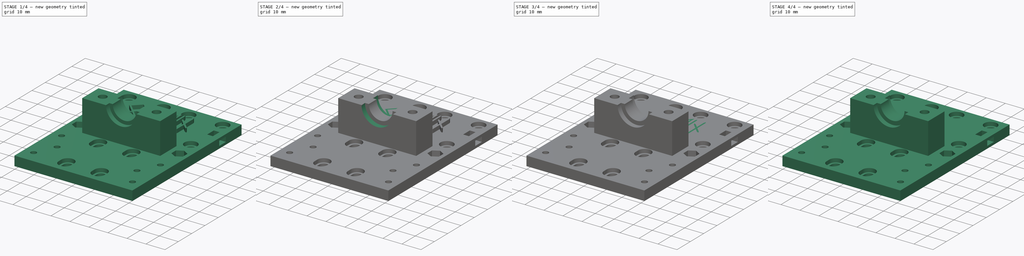
[diagram: build sequence overview — one tinted view per stage of 4, left to right]
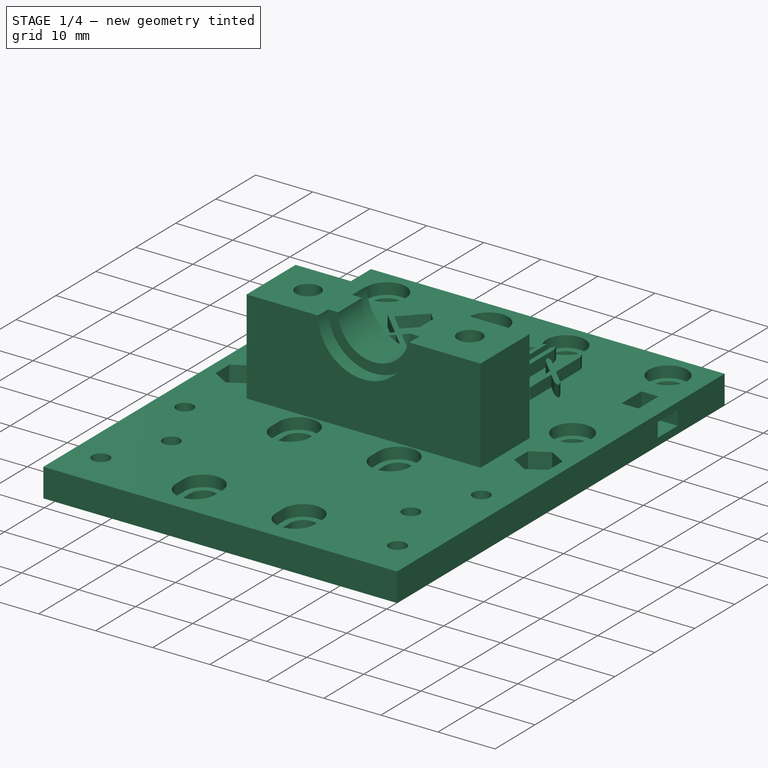
[diagram: stage 1 of 4 — iso view after this stage's code; geometry added in this stage tinted green]
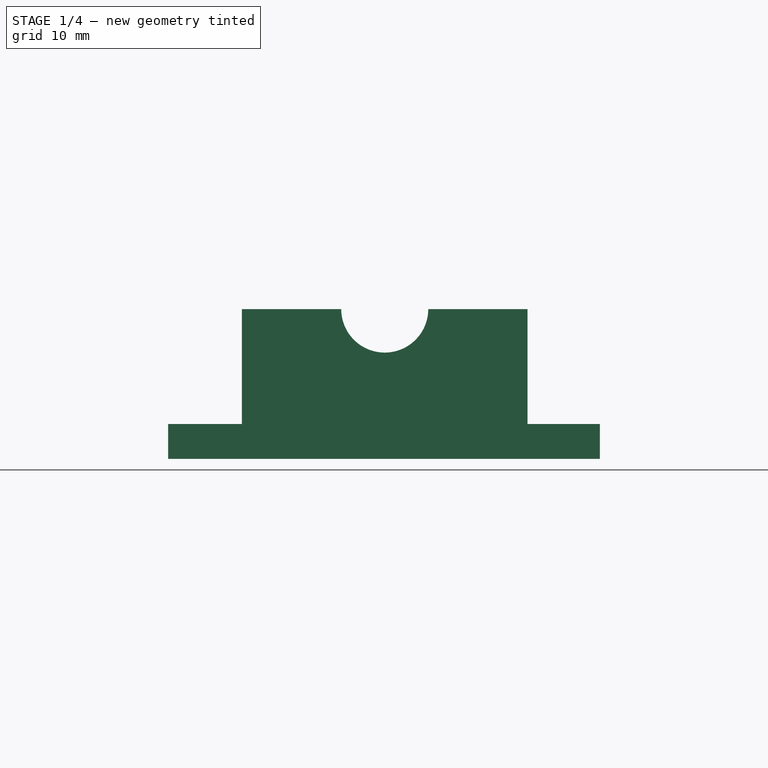
[diagram: stage 1 of 4 — front view after this stage's code; geometry added in this stage tinted green]
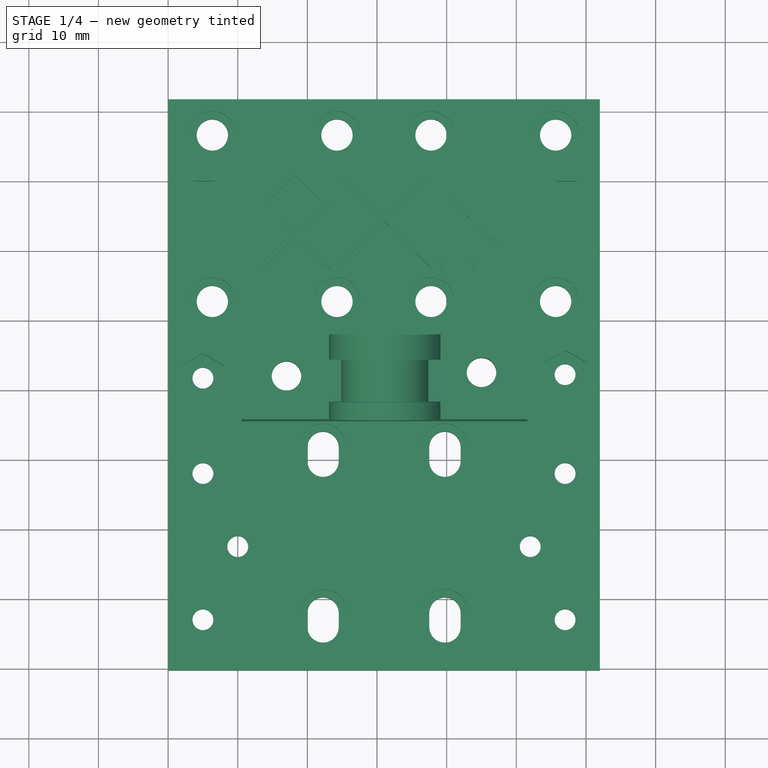
[diagram: stage 1 of 4 — top view after this stage's code; geometry added in this stage tinted green]
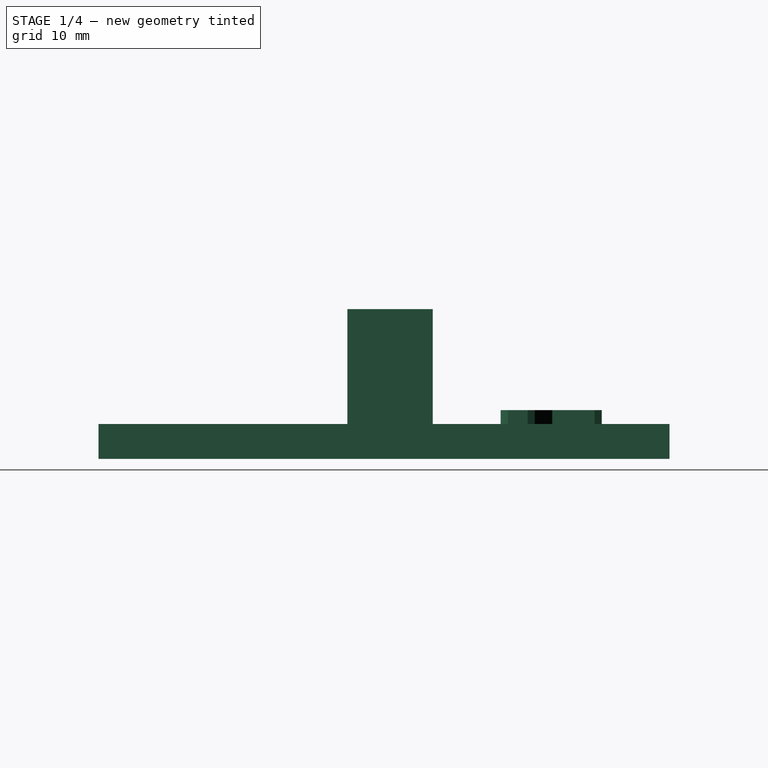
[diagram: stage 1 of 4 — right view after this stage's code; geometry added in this stage tinted green]
FCSTD DOCUMENT  (FreeCAD 0.18R16131 (Git))
Label: BasePlate
License: All rights reserved
LicenseURL: http://en.wikipedia.org/wiki/All_rights_reserved
objects: PartDesign::Pocket×7, App::MeasureDistance×4, Part::Feature×3, Sketcher::SketchObject×3, Part::FeaturePython×2, PartDesign::FeatureBase×1, PartDesign::Body×1
note: 24 computed .brp shape members not serialized (recipe doc carries the construction recipe); baked Part::Feature solids carry a one-line shape summary decoded from their .brp

FEATURE [Part::Feature] E3DV6_BasePlate_V4001001001_solid  label="E3DV6_BasePlate_V4003 (Solid)"
  shape: bbox 62 x 82 x 21.5 mm, 1941 faces (baked)
FEATURE [PartDesign::FeatureBase] BaseFeature
  BaseFeature = -> E3DV6_BasePlate_V4001001001_solid
FEATURE [Sketcher::SketchObject] Sketch
  MapMode = 5
  Placement = pos=(0,35.5,0) rot=(1,0,0;1.5708rad)
  Support = -> [BaseFeature]
  sketch-geometry (1):
    g0: Circle CenterX=31.1049 CenterY=21.5114 CenterZ=0 NormalX=0 NormalY=0 NormalZ=1 AngleXU=0 Radius=6.25
  constraints (1):
    c: Radius(g0) = 6.25
FEATURE [PartDesign::Pocket] Pocket  label="SmalHole"
  BaseFeature = -> BaseFeature
  Length = 20
  Length2 = 100
  Profile = -> Sketch
  Type = 0
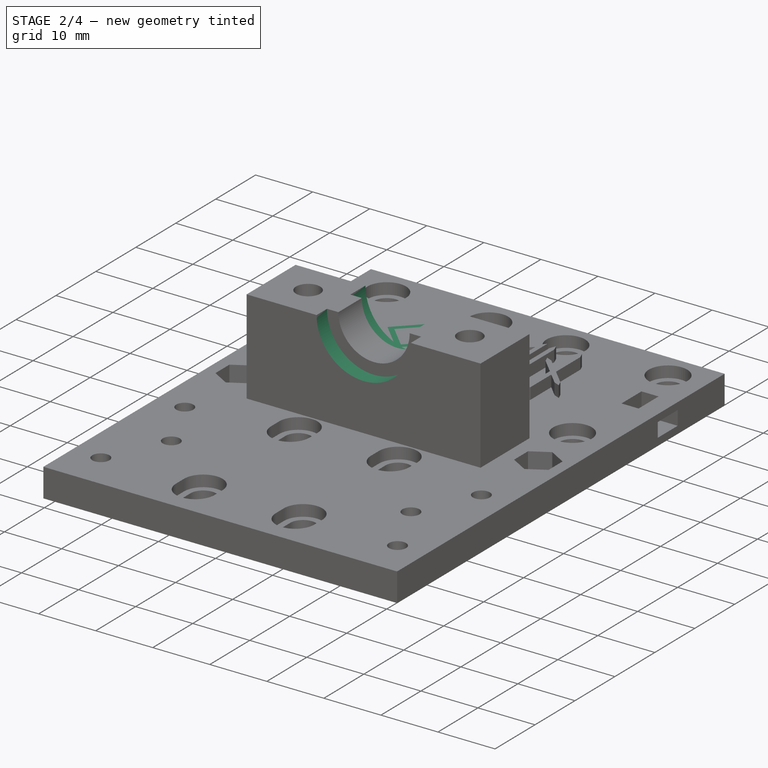
[diagram: stage 2 of 4 — iso view after this stage's code; geometry added in this stage tinted green]
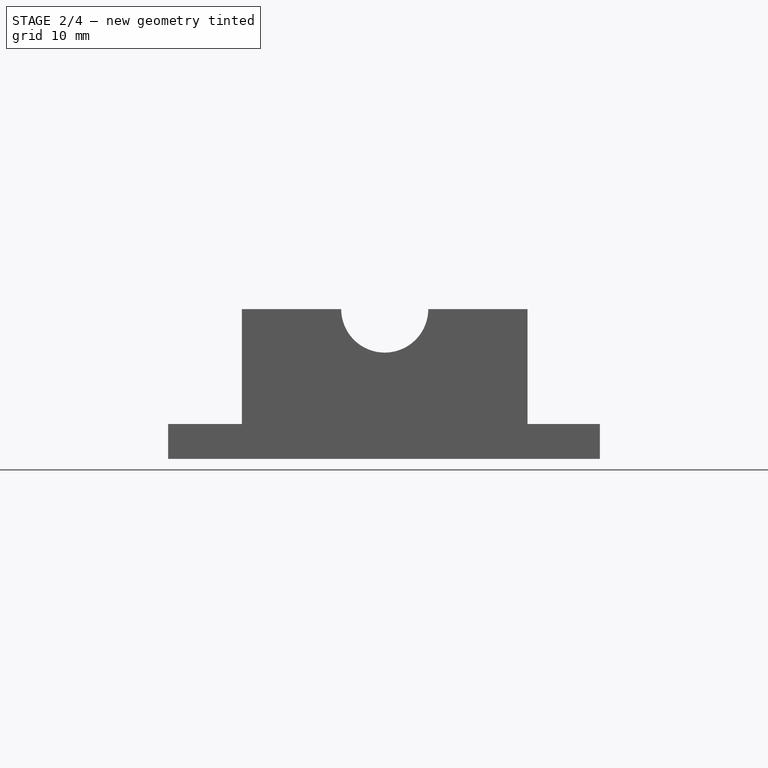
[diagram: stage 2 of 4 — front view after this stage's code; geometry added in this stage tinted green]
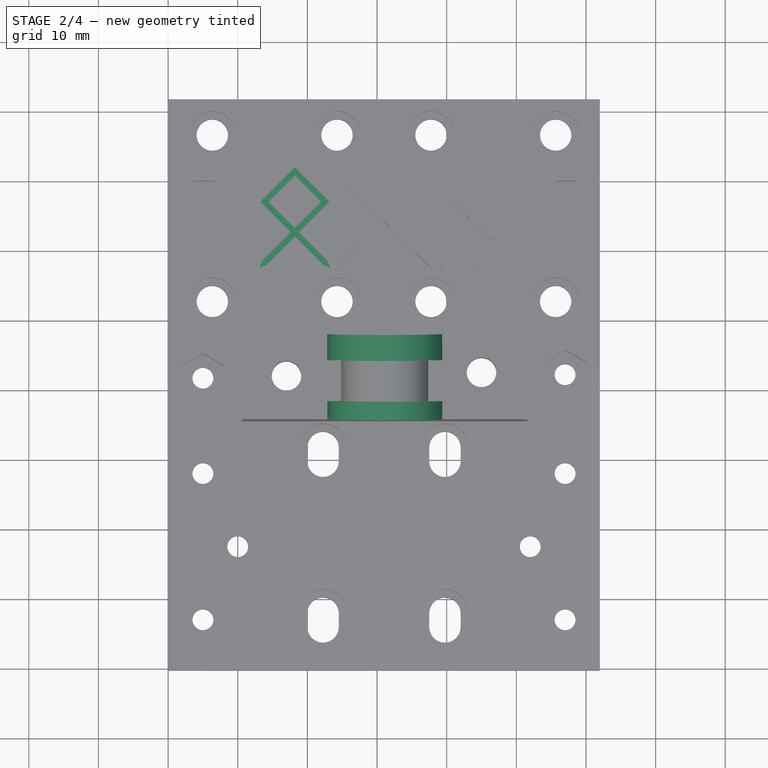
[diagram: stage 2 of 4 — top view after this stage's code; geometry added in this stage tinted green]
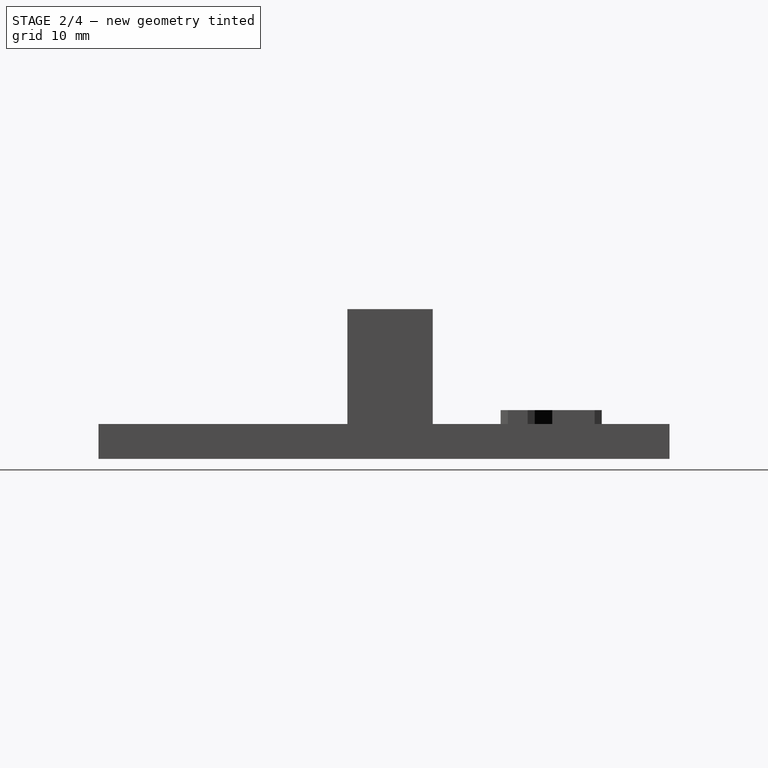
[diagram: stage 2 of 4 — right view after this stage's code; geometry added in this stage tinted green]
FEATURE [Sketcher::SketchObject] Sketch001
  MapMode = 5
  Placement = pos=(0,35.5,0) rot=(1,0,0;1.5708rad)
  Support = -> [Pocket]
  sketch-geometry (1):
    g0: Circle CenterX=31.1153 CenterY=21.4996 CenterZ=0 NormalX=0 NormalY=0 NormalZ=1 AngleXU=0 Radius=8.25
  constraints (1):
    c: Radius(g0) = 8.25
FEATURE [PartDesign::Pocket] Pocket001  label="BigHoleUnder"
  BaseFeature = -> Pocket
  Length = 2.6
  Length2 = 100
  Profile = -> Sketch001
  Type = 0
FEATURE [Sketcher::SketchObject] Sketch002
  MapMode = 5
  Placement = pos=(0,47.75,0) rot=(0,0.707107,0.707107;3.14159rad)
  Support = -> [Pocket001]
  sketch-geometry (1):
    g0: Circle CenterX=-31.094 CenterY=21.4834 CenterZ=0 NormalX=0 NormalY=0 NormalZ=1 AngleXU=0 Radius=8.25
  constraints (1):
    c: Radius(g0) = 8.25
FEATURE [App::MeasureDistance] Distance  label="Distance: 12,25 mm"
  Distance = 12.25
  P1 = (10.6,35.5,21.5)
  P2 = (10.6,47.75,21.5)
FEATURE [App::MeasureDistance] Distance001  label="Distance: 3,72 mm"
  Distance = 3.71535
  P1 = (22.844,43.98,21.5)
  P2 = (22.844,47.6953,21.5)
FEATURE [App::MeasureDistance] Distance002  label="Distance: 2,60 mm"
  Distance = 2.60016
  P1 = (22.8653,35.5,21.5)
  P2 = (22.8947,38.1,21.5)
FEATURE [App::MeasureDistance] Distance003  label="Distance: 5,85 mm"
  Distance = 5.85119
  P1 = (24.8549,38.1,21.5)
  P2 = (24.8549,43.9512,21.5)
FEATURE [PartDesign::Pocket] Pocket002  label="BigHoleTop"
  BaseFeature = -> Pocket001
  Length = 3.77
  Length2 = 100
  Profile = -> Sketch002
  Type = 0
FEATURE [PartDesign::Pocket] Pocket003
  BaseFeature = -> Pocket002
  Length = 2
  Length2 = 100
  Profile = -> Pocket002 [Face1691]
  Type = 0
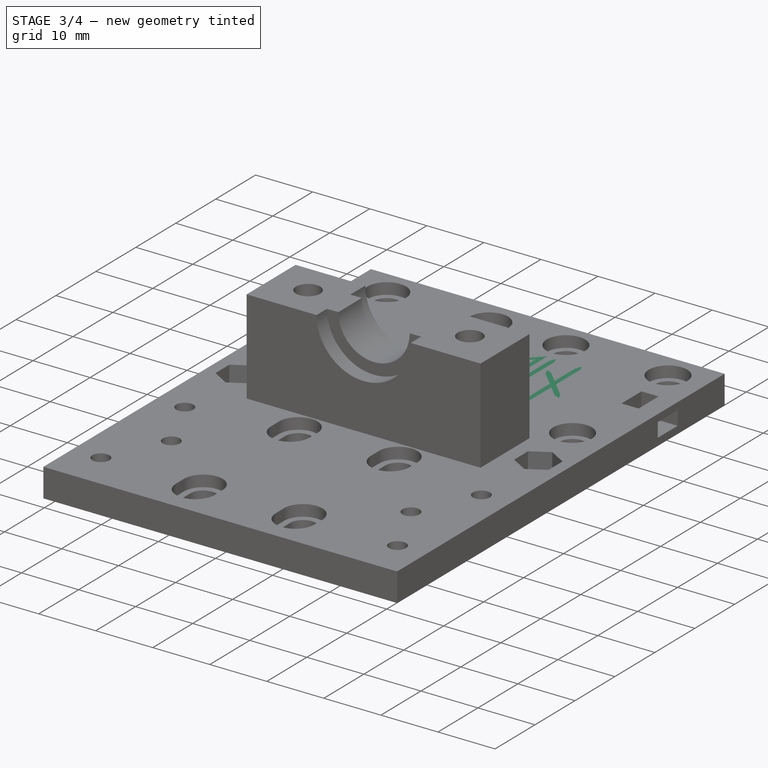
[diagram: stage 3 of 4 — iso view after this stage's code; geometry added in this stage tinted green]
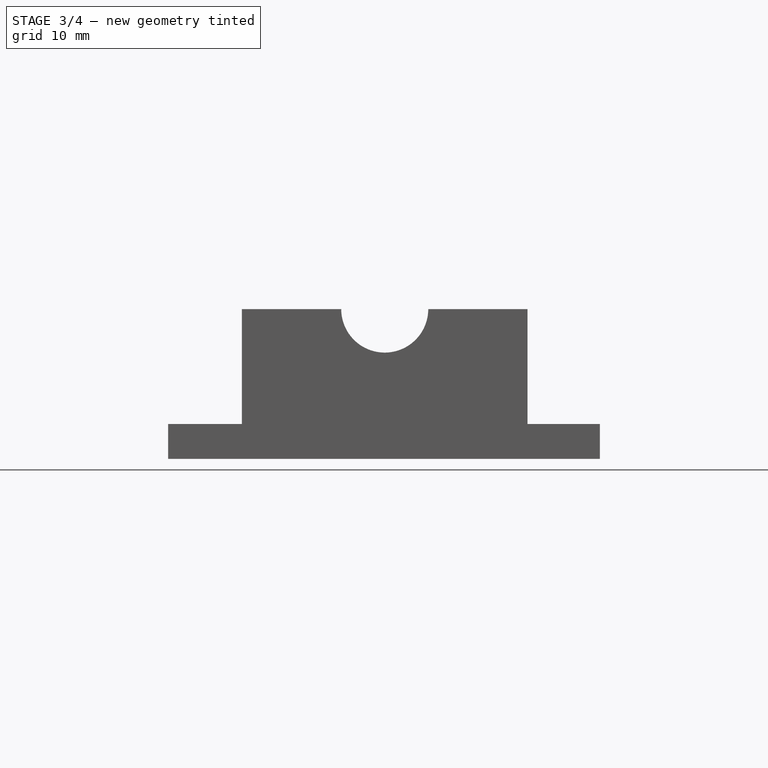
[diagram: stage 3 of 4 — front view after this stage's code; geometry added in this stage tinted green]
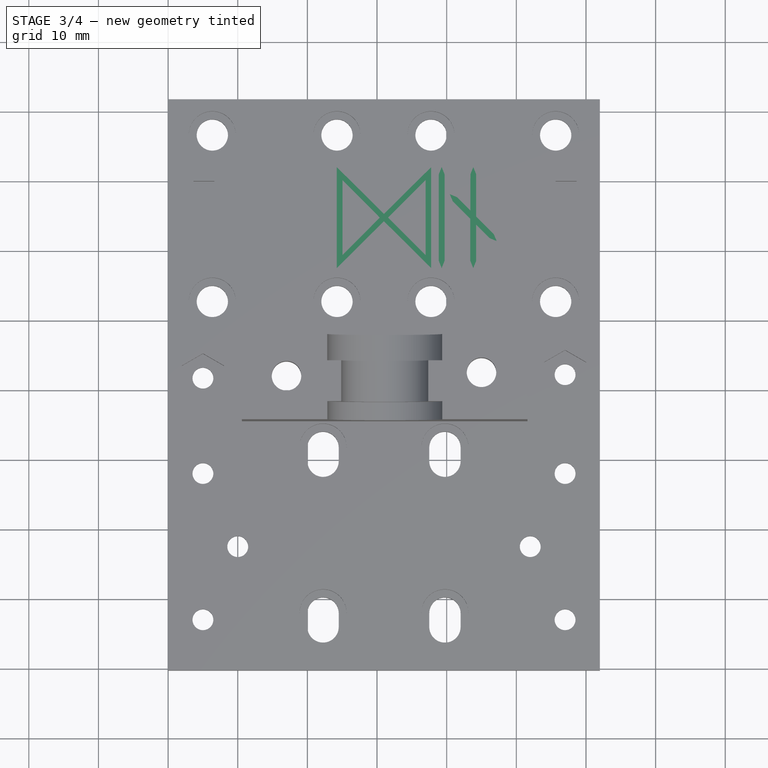
[diagram: stage 3 of 4 — top view after this stage's code; geometry added in this stage tinted green]
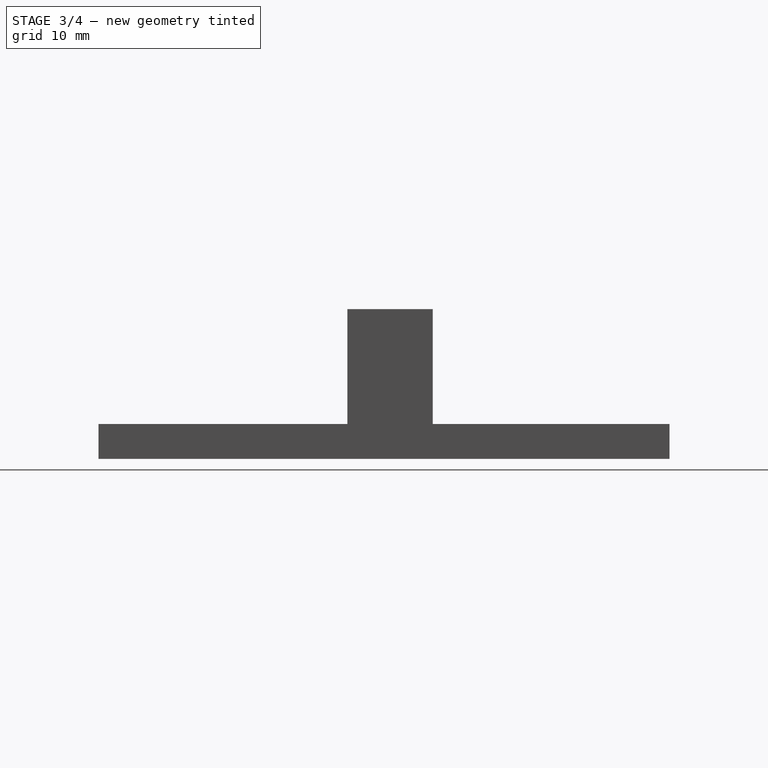
[diagram: stage 3 of 4 — right view after this stage's code; geometry added in this stage tinted green]
FEATURE [PartDesign::Pocket] Pocket004
  BaseFeature = -> Pocket003
  Length = 2
  Length2 = 100
  Profile = -> Pocket003 [Face1679]
  Type = 0
FEATURE [PartDesign::Pocket] Pocket005
  BaseFeature = -> Pocket004
  Length = 2
  Length2 = 100
  Profile = -> Pocket004 [Face1678]
  Type = 0
FEATURE [PartDesign::Pocket] Pocket006
  BaseFeature = -> Pocket005
  Length = 2
  Length2 = 100
  Profile = -> Pocket005 [Face1672]
  Type = 0
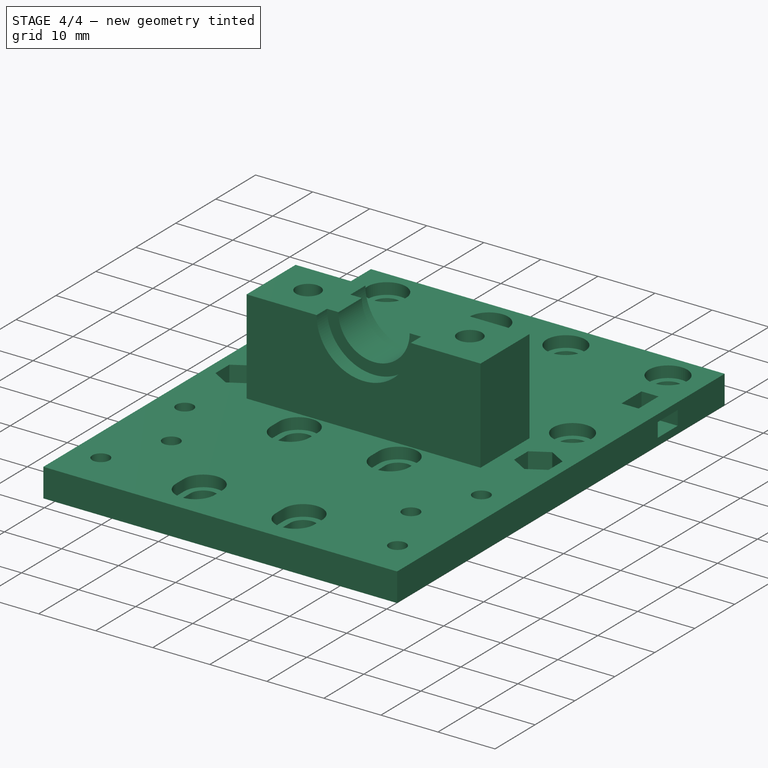
[diagram: stage 4 of 4 — iso view after this stage's code; geometry added in this stage tinted green]
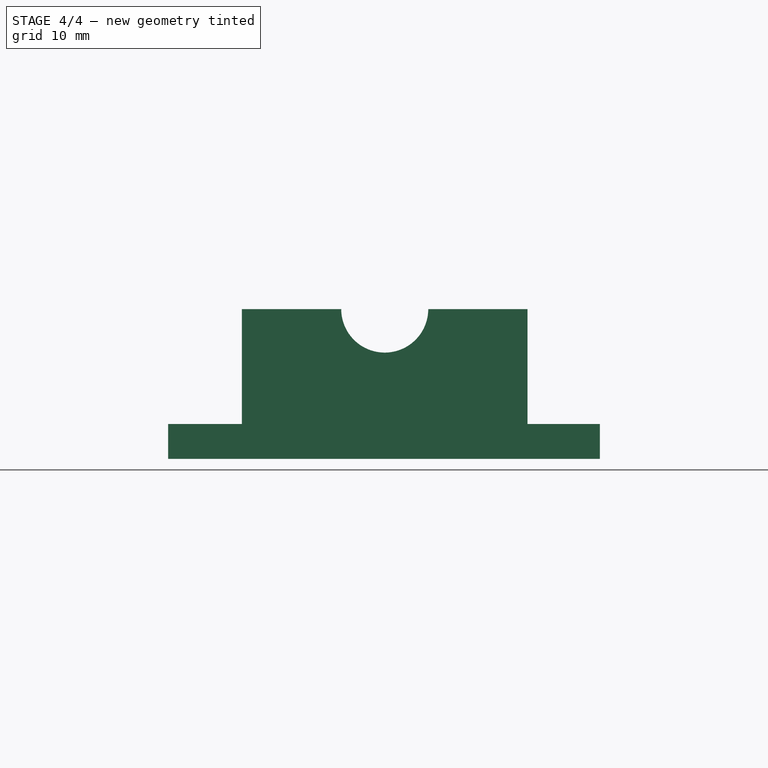
[diagram: stage 4 of 4 — front view after this stage's code; geometry added in this stage tinted green]
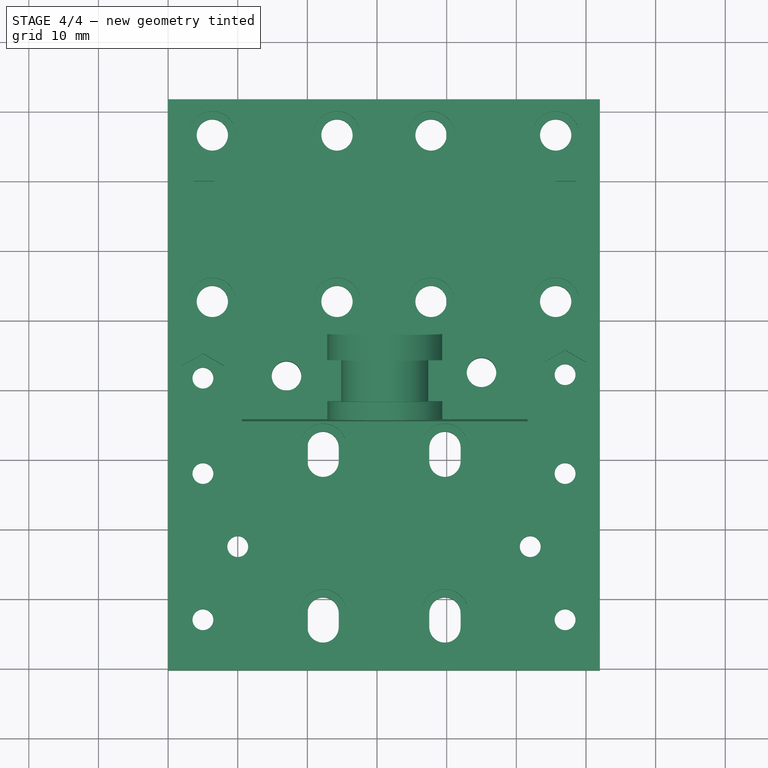
[diagram: stage 4 of 4 — top view after this stage's code; geometry added in this stage tinted green]
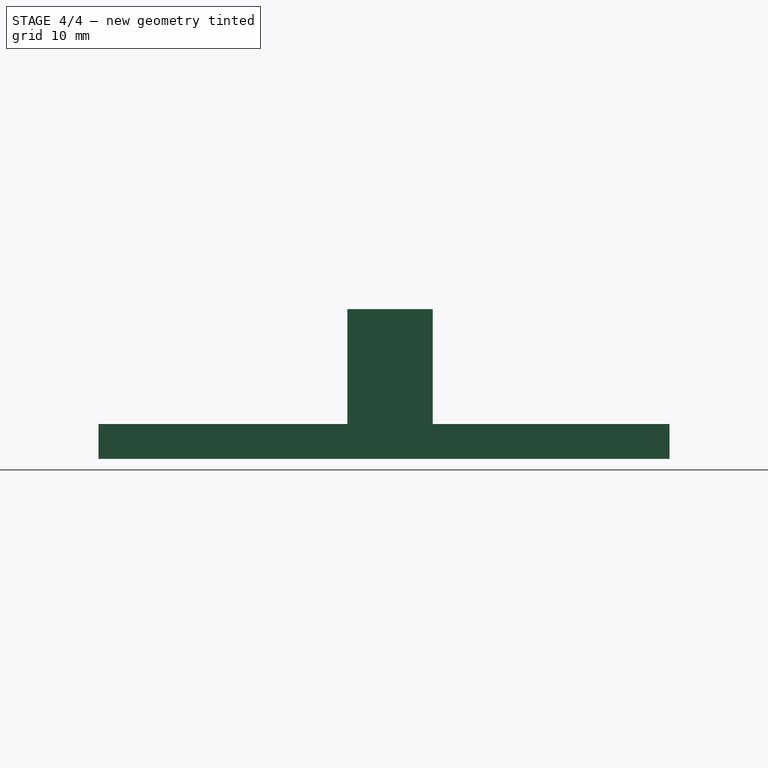
[diagram: stage 4 of 4 — right view after this stage's code; geometry added in this stage tinted green]
FEATURE [PartDesign::Body] Body
  BaseFeature = -> E3DV6_BasePlate_V4001001001_solid
  Group = -> [BaseFeature,Sketch,Pocket,Sketch001,Pocket001,Sketch002,Pocket002,Pocket003,Pocket004,Pocket005,Pocket006]
  Origin = -> Origin
  Tip = -> Pocket006
FEATURE [Part::FeaturePython] Connect  # WARN: FeaturePython — macro-defined, semantics opaque (R4)
  Objects = -> [Pocket006]
  Tolerance = 0
FEATURE [Part::Feature] Defeatured
  shape: bbox 62 x 82 x 21.5 mm, 1765 faces (baked)
FEATURE [Part::Feature] Defeatured001
  shape: bbox 62 x 82 x 21.5 mm, 1763 faces (baked)
FEATURE [Part::FeaturePython] Connect001  # WARN: FeaturePython — macro-defined, semantics opaque (R4)
  Objects = -> [Connect]
  Tolerance = 0
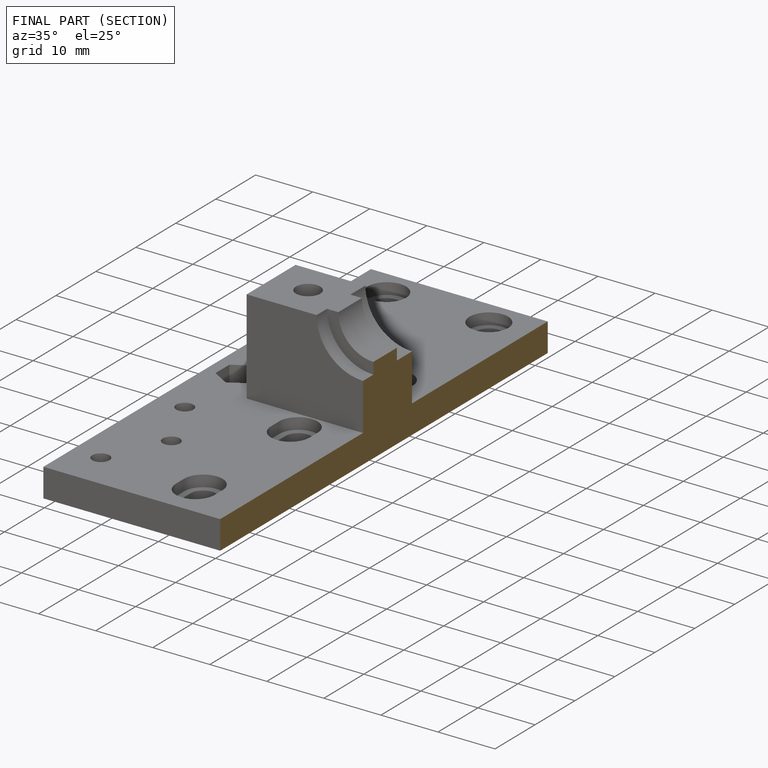
[diagram: finished part — half-section view (interior)]
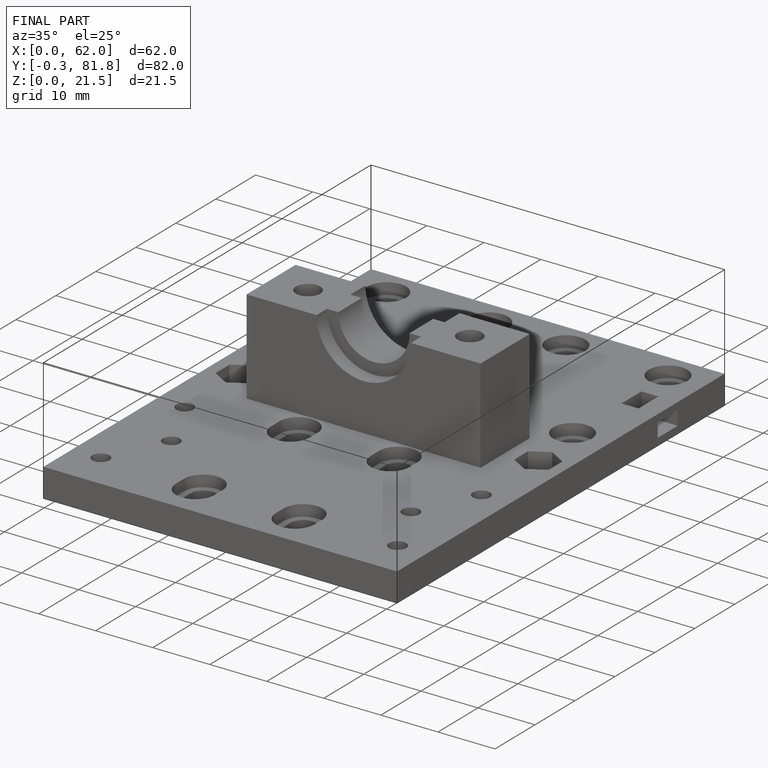
[diagram: finished part — iso view with bounding-box wireframe]
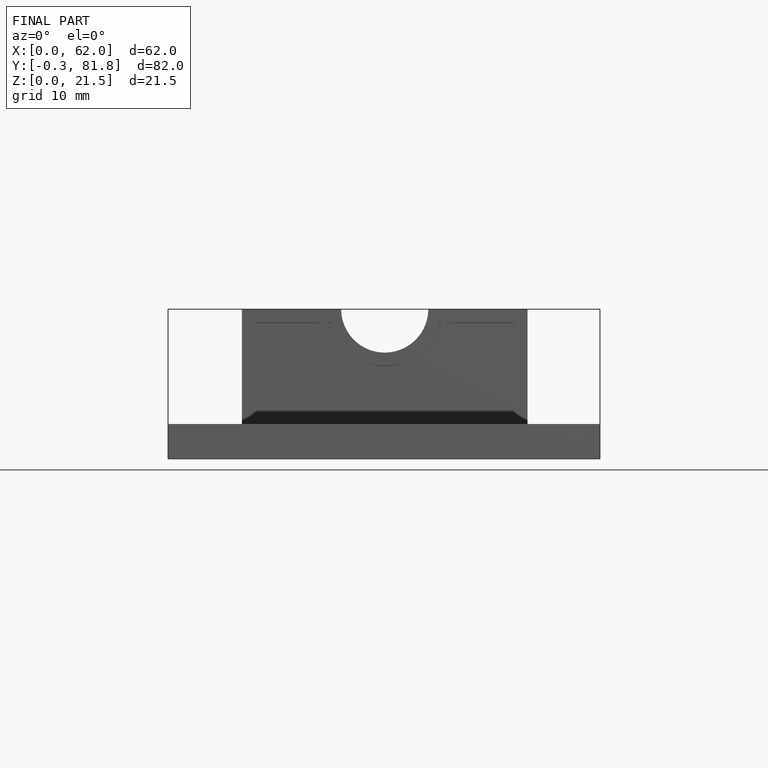
[diagram: finished part — front view with bounding-box wireframe]
